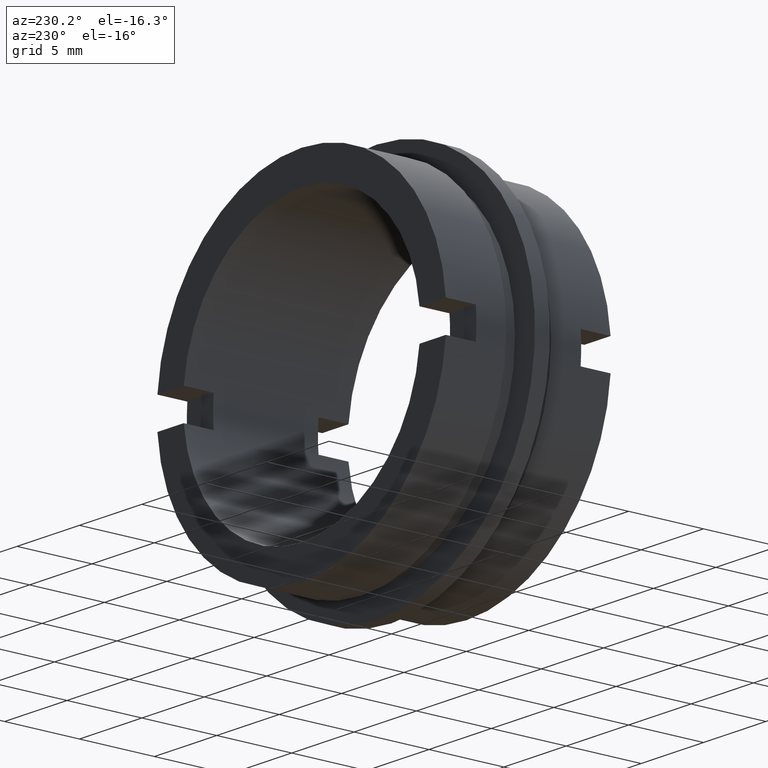
[diagram: clean part render]
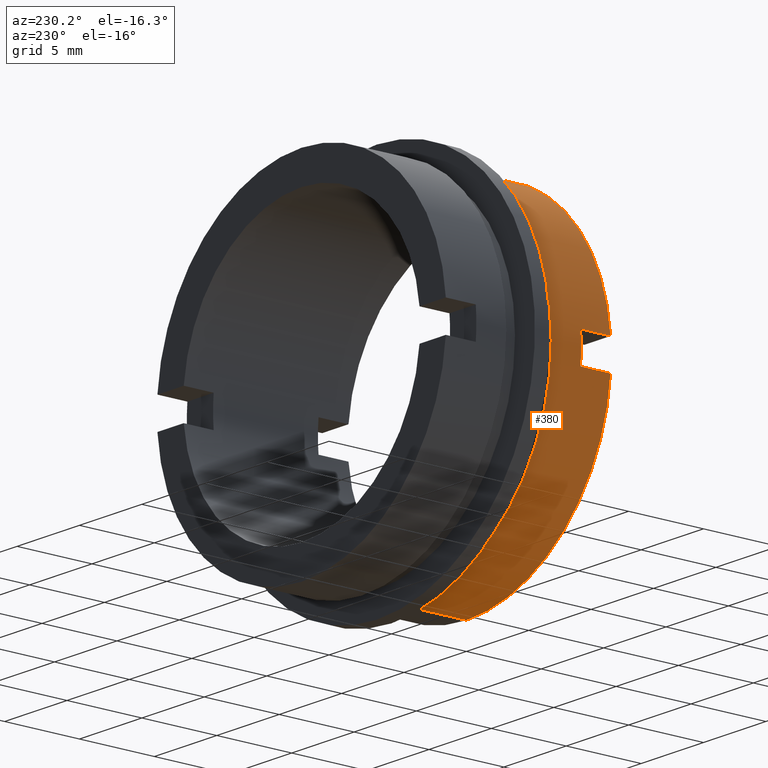
[diagram: same view with one face highlighted and labeled with its STEP entity id]
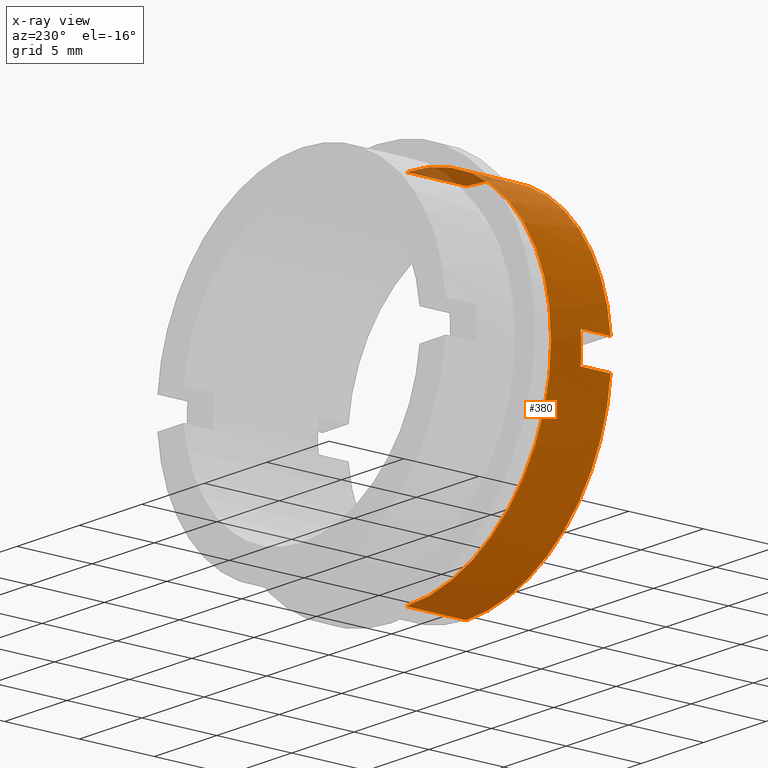
[diagram: x-ray of the same camera — body ghosted, the highlighted face saturated]
A machine part, auxiliary view. The second image highlights one B-rep face of the part: STEP entity #380.
The next image is the same camera in x-ray: the body ghosted, the highlighted face saturated — about 3% of this face is hidden behind the body in this view.
In plain terms, the highlighted cylindrical surface (partial cylindrical patch) has radius 11.6 mm, axis along (-0, 1, -0).
Its self-contained STEP definition (entity closure, byte-faithful):
#17 = LINE ( 'NONE', #584, #708 ) ;
#25 = ORIENTED_EDGE ( 'NONE', *, *, #290, .T. ) ;
#30 = DIRECTION ( 'NONE',  ( -0.0000000000000000000, 1.000000000000000000, -0.0000000000000000000 ) ) ;
#38 = DIRECTION ( 'NONE',  ( 0.0000000000000000000, -1.000000000000000000, 0.0000000000000000000 ) ) ;
#54 = CARTESIAN_POINT ( 'NONE',  ( 0.0000000000000000000, 4.000000000000000000, 0.0000000000000000000 ) ) ;
#65 = VERTEX_POINT ( 'NONE', #304 ) ;
#73 = DIRECTION ( 'NONE',  ( -0.0000000000000000000, 1.000000000000000000, -0.0000000000000000000 ) ) ;
#100 = EDGE_CURVE ( 'NONE', #65, #736, #104, .T. ) ;
#104 = CIRCLE ( 'NONE', #180, 11.59999999999999800 ) ;
#131 = CARTESIAN_POINT ( 'NONE',  ( -11.55681617055493000, 1.999999999999998200, 1.000000000000000200 ) ) ;
#137 = VECTOR ( 'NONE', #238, 1000.000000000000000 ) ;
#143 = ORIENTED_EDGE ( 'NONE', *, *, #558, .T. ) ;
#158 = AXIS2_PLACEMENT_3D ( 'NONE', #433, #961, #343 ) ;
#173 = FACE_OUTER_BOUND ( 'NONE', #205, .T. ) ;
#180 = AXIS2_PLACEMENT_3D ( 'NONE', #335, #252, #957 ) ;
#193 = CIRCLE ( 'NONE', #158, 11.59999999999999800 ) ;
#205 = EDGE_LOOP ( 'NONE', ( #706, #985, #721, #1055, #550, #143, #25, #1033 ) ) ;
#228 = CARTESIAN_POINT ( 'NONE',  ( -11.55681617055492800, 2.000000000000000000, -0.9999999999999995600 ) ) ;
#238 = DIRECTION ( 'NONE',  ( -0.0000000000000000000, 1.000000000000000000, -0.0000000000000000000 ) ) ;
#250 = CARTESIAN_POINT ( 'NONE',  ( -11.55681617055493000, 22.67749945107591400, 1.000000000000003800 ) ) ;
#252 = DIRECTION ( 'NONE',  ( -0.0000000000000000000, 1.000000000000000000, -0.0000000000000000000 ) ) ;
#270 = VERTEX_POINT ( 'NONE', #228 ) ;
#290 = EDGE_CURVE ( 'NONE', #1123, #841, #17, .T. ) ;
#296 = CYLINDRICAL_SURFACE ( 'NONE', #585, 11.59999999999999800 ) ;
#304 = CARTESIAN_POINT ( 'NONE',  ( 1.420590287010929300E-015, 0.0000000000000000000, -11.59999999999999800 ) ) ;
#312 = VERTEX_POINT ( 'NONE', #131 ) ;
#332 = EDGE_CURVE ( 'NONE', #270, #736, #908, .T. ) ;
#335 = CARTESIAN_POINT ( 'NONE',  ( 0.0000000000000000000, 0.0000000000000000000, 0.0000000000000000000 ) ) ;
#343 = DIRECTION ( 'NONE',  ( 0.0000000000000000000, 0.0000000000000000000, 1.000000000000000000 ) ) ;
#371 = LINE ( 'NONE', #1121, #137 ) ;
#380 = ADVANCED_FACE ( 'NONE', ( #173 ), #296, .T. ) ;
#389 = CIRCLE ( 'NONE', #478, 11.59999999999999800 ) ;
#393 = CARTESIAN_POINT ( 'NONE',  ( -11.55681617055492800, 22.67749945107591400, -0.9999999999999943400 ) ) ;
#409 = AXIS2_PLACEMENT_3D ( 'NONE', #54, #587, #1109 ) ;
#433 = CARTESIAN_POINT ( 'NONE',  ( 0.0000000000000000000, 1.999999999999998200, 0.0000000000000000000 ) ) ;
#454 = DIRECTION ( 'NONE',  ( -0.0000000000000000000, 1.000000000000000000, -0.0000000000000000000 ) ) ;
#478 = AXIS2_PLACEMENT_3D ( 'NONE', #1064, #454, #980 ) ;
#486 = DIRECTION ( 'NONE',  ( -0.0000000000000000000, 1.000000000000000000, -0.0000000000000000000 ) ) ;
#503 = CARTESIAN_POINT ( 'NONE',  ( 0.0000000000000000000, 4.000000000000000000, 11.59999999999999800 ) ) ;
#544 = VERTEX_POINT ( 'NONE', #984 ) ;
#550 = ORIENTED_EDGE ( 'NONE', *, *, #869, .F. ) ;
#558 = EDGE_CURVE ( 'NONE', #544, #1123, #389, .T. ) ;
#584 = CARTESIAN_POINT ( 'NONE',  ( 0.0000000000000000000, 22.67749945107591400, 11.59999999999999800 ) ) ;
#585 = AXIS2_PLACEMENT_3D ( 'NONE', #661, #30, #831 ) ;
#587 = DIRECTION ( 'NONE',  ( -0.0000000000000000000, 1.000000000000000000, -0.0000000000000000000 ) ) ;
#635 = EDGE_CURVE ( 'NONE', #312, #270, #193, .T. ) ;
#661 = CARTESIAN_POINT ( 'NONE',  ( 0.0000000000000000000, 22.67749945107591400, 0.0000000000000000000 ) ) ;
#706 = ORIENTED_EDGE ( 'NONE', *, *, #1000, .F. ) ;
#708 = VECTOR ( 'NONE', #486, 1000.000000000000000 ) ;
#721 = ORIENTED_EDGE ( 'NONE', *, *, #332, .F. ) ;
#736 = VERTEX_POINT ( 'NONE', #1118 ) ;
#831 = DIRECTION ( 'NONE',  ( 0.0000000000000000000, 0.0000000000000000000, 1.000000000000000000 ) ) ;
#841 = VERTEX_POINT ( 'NONE', #503 ) ;
#864 = VECTOR ( 'NONE', #73, 1000.000000000000000 ) ;
#869 = EDGE_CURVE ( 'NONE', #544, #312, #1088, .T. ) ;
#897 = VERTEX_POINT ( 'NONE', #1042 ) ;
#908 = LINE ( 'NONE', #393, #1108 ) ;
#923 = CARTESIAN_POINT ( 'NONE',  ( 0.0000000000000000000, 0.0000000000000000000, 11.59999999999999800 ) ) ;
#957 = DIRECTION ( 'NONE',  ( 0.0000000000000000000, 0.0000000000000000000, 1.000000000000000000 ) ) ;
#961 = DIRECTION ( 'NONE',  ( -0.0000000000000000000, -1.000000000000000000, -0.0000000000000000000 ) ) ;
#980 = DIRECTION ( 'NONE',  ( 0.0000000000000000000, 0.0000000000000000000, 1.000000000000000000 ) ) ;
#984 = CARTESIAN_POINT ( 'NONE',  ( -11.55681617055493000, 0.0000000000000000000, 1.000000000000000000 ) ) ;
#985 = ORIENTED_EDGE ( 'NONE', *, *, #100, .T. ) ;
#1000 = EDGE_CURVE ( 'NONE', #65, #897, #371, .T. ) ;
#1029 = CIRCLE ( 'NONE', #409, 11.59999999999999800 ) ;
#1033 = ORIENTED_EDGE ( 'NONE', *, *, #1063, .F. ) ;
#1042 = CARTESIAN_POINT ( 'NONE',  ( 1.420590287010929300E-015, 4.000000000000000000, -11.59999999999999800 ) ) ;
#1055 = ORIENTED_EDGE ( 'NONE', *, *, #635, .F. ) ;
#1063 = EDGE_CURVE ( 'NONE', #897, #841, #1029, .T. ) ;
#1064 = CARTESIAN_POINT ( 'NONE',  ( 0.0000000000000000000, 0.0000000000000000000, 0.0000000000000000000 ) ) ;
#1088 = LINE ( 'NONE', #250, #864 ) ;
#1108 = VECTOR ( 'NONE', #38, 1000.000000000000000 ) ;
#1109 = DIRECTION ( 'NONE',  ( 0.0000000000000000000, 0.0000000000000000000, 1.000000000000000000 ) ) ;
#1118 = CARTESIAN_POINT ( 'NONE',  ( -11.55681617055493000, 0.0000000000000000000, -1.000000000000000000 ) ) ;
#1121 = CARTESIAN_POINT ( 'NONE',  ( 1.420590287010929300E-015, 22.67749945107591400, -11.59999999999999800 ) ) ;
#1123 = VERTEX_POINT ( 'NONE', #923 ) ;